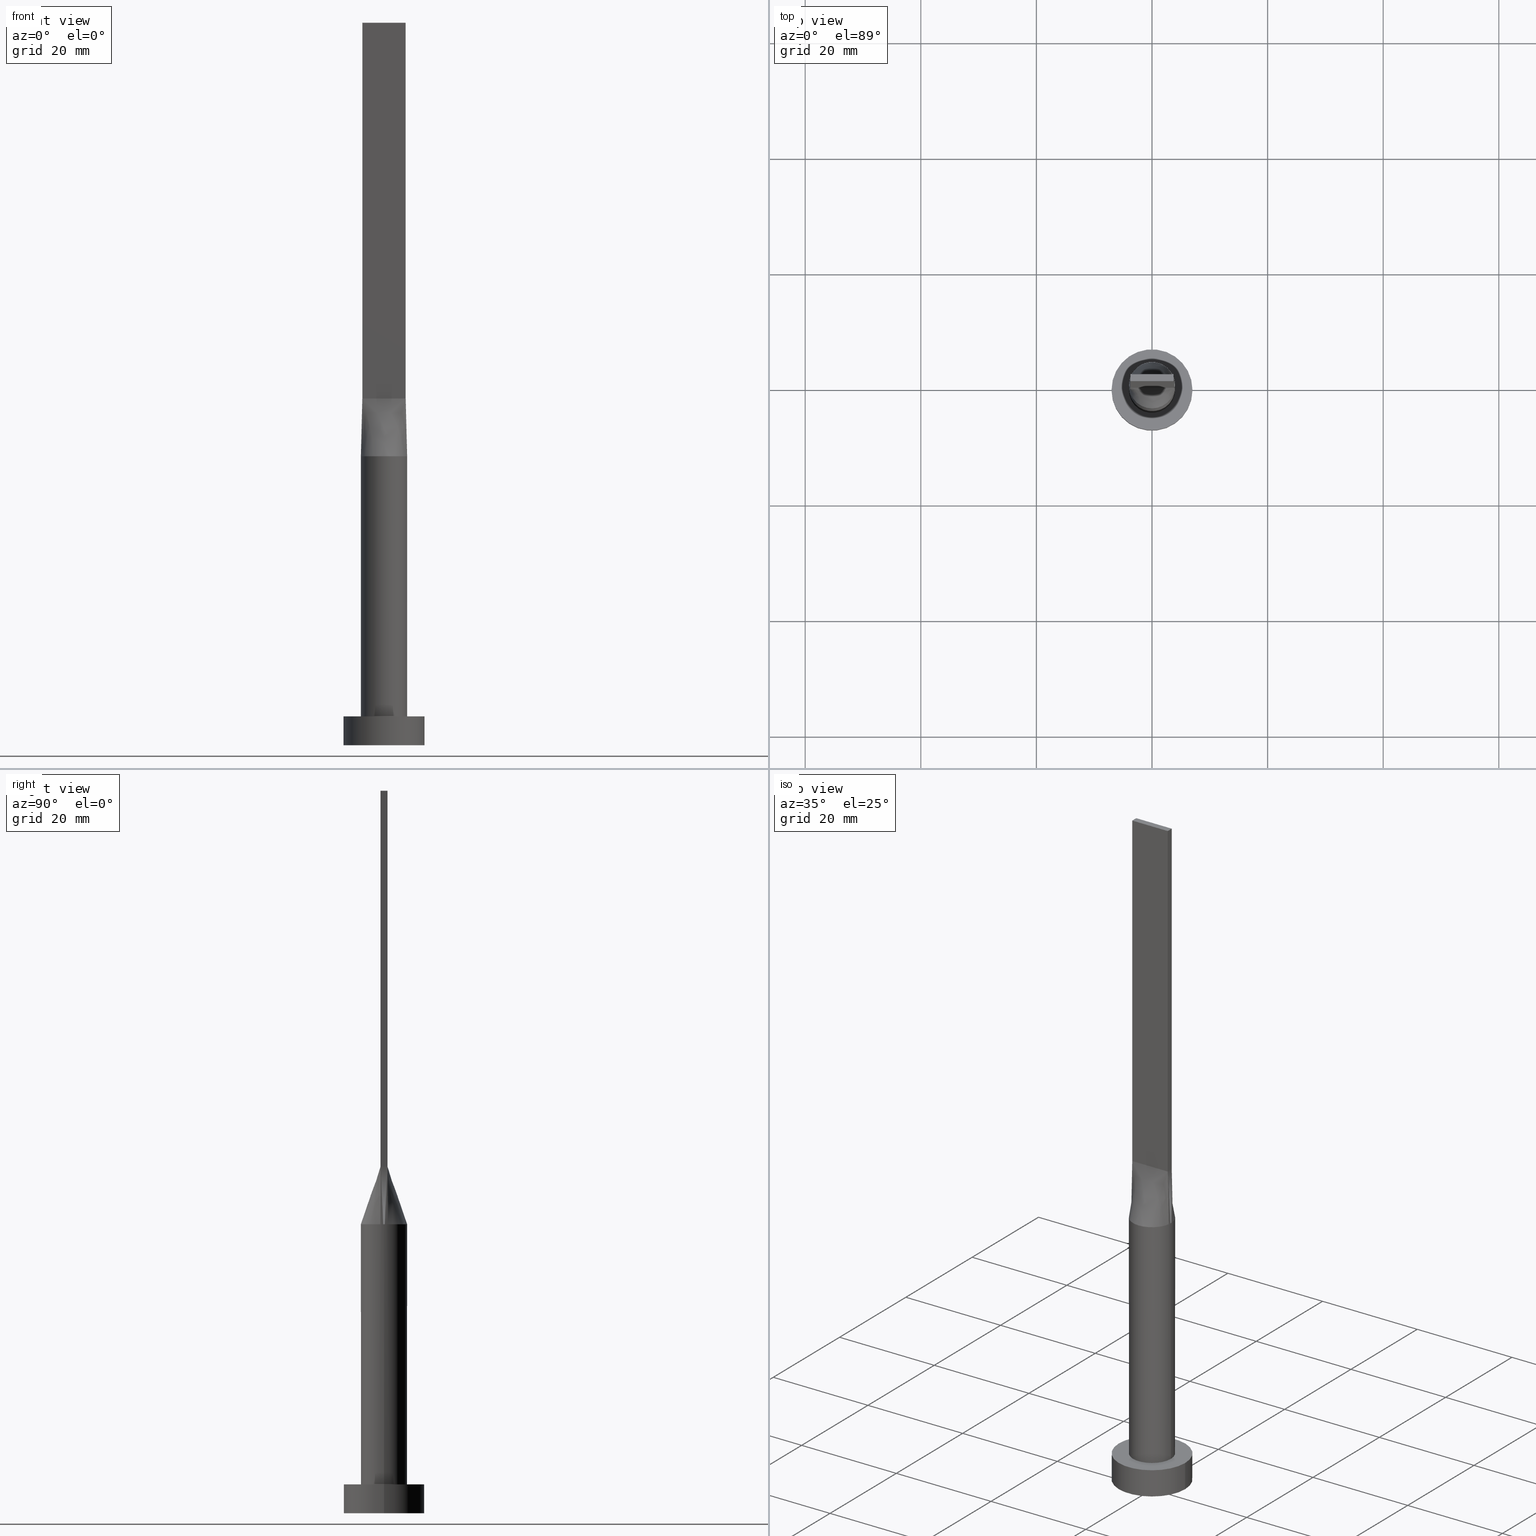
[diagram: canonical four-view strip — front | top / right | iso, engineering-drawing reading convention]
A machine part, canonical four-view strip (front | top / right | iso — engineering-drawing reading convention). The complete STEP part file that produces these views, byte-faithful:
ISO-10303-21;
HEADER;
FILE_DESCRIPTION (( 'STEP AP203' ),
    '1' );
FILE_NAME ('5fad.STEP',
    '2023-02-13T09:38:03',
    ( '' ),
    ( '' ),
    'SwSTEP 2.0',
    'SolidWorks 2019',
    '' );
FILE_SCHEMA (( 'CONFIG_CONTROL_DESIGN' ));
ENDSEC;

DATA;
#1 = CARTESIAN_POINT ( 'NONE',  ( 4.000000000000000000, 4.898587196589411843E-16, 49.99999999999999289 ) ) ;
#2 = VECTOR ( 'NONE', #42, 1000.000000000000000 ) ;
#3 = DIRECTION ( 'NONE',  ( 5.782411586589357392E-17, 1.000000000000000000, -0.000000000000000000 ) ) ;
#4 = EDGE_CURVE ( 'NONE', #386, #480, #259, .T. ) ;
#5 = ORIENTED_EDGE ( 'NONE', *, *, #118, .F. ) ;
#6 = DIRECTION ( 'NONE',  ( 1.000000000000000000, 0.000000000000000000, 0.000000000000000000 ) ) ;
#7 = CARTESIAN_POINT ( 'NONE',  ( -2.553164211252348714, 3.116528153703943538, 49.99999999999999289 ) ) ;
#8 = EDGE_LOOP ( 'NONE', ( #581, #68 ) ) ;
#9 = PERSON_AND_ORGANIZATION ( #160, #287 ) ;
#10 = CARTESIAN_POINT ( 'NONE',  ( -3.800365609718893811, 1.311488165564686392, 49.99999999999999289 ) ) ;
#11 = VERTEX_POINT ( 'NONE', #132 ) ;
#12 = ADVANCED_FACE ( 'NONE', ( #534 ), #226, .F. ) ;
#13 = CARTESIAN_POINT ( 'NONE',  ( 1.134810363096319108, -3.874001625491798162, 50.00000000000000000 ) ) ;
#14 = FACE_OUTER_BOUND ( 'NONE', #484, .T. ) ;
#15 = AXIS2_PLACEMENT_3D ( 'NONE', #472, #385, #81 ) ;
#16 = APPLICATION_PROTOCOL_DEFINITION ( 'international standard', 'config_control_design', 1994, #56 ) ;
#17 = CARTESIAN_POINT ( 'NONE',  ( -7.000000000000000000, 0.000000000000000000, 5.000000000000000000 ) ) ;
#18 = DIRECTION ( 'NONE',  ( 0.000000000000000000, 0.000000000000000000, 1.000000000000000000 ) ) ;
#19 = EDGE_CURVE ( 'NONE', #141, #424, #537, .T. ) ;
#20 = B_SPLINE_SURFACE_WITH_KNOTS ( 'NONE', 3, 1, ( 
 ( #308, #178 ),
 ( #144, #43 ),
 ( #446, #542 ),
 ( #96, #450 ),
 ( #39, #50 ),
 ( #491, #100 ),
 ( #270, #440 ),
 ( #487, #305 ),
 ( #354, #47 ),
 ( #262, #576 ),
 ( #220, #52 ),
 ( #182, #140 ),
 ( #7, #443 ),
 ( #223, #407 ),
 ( #364, #402 ),
 ( #10, #137 ),
 ( #313, #86 ),
 ( #495, #185 ) ),
 .UNSPECIFIED., .F., .F., .F.,
 ( 4, 2, 2, 2, 2, 2, 2, 2, 4 ),
 ( 2, 2 ),
 ( 0.000000000000000000, 0.1249999999999999445, 0.2499999999999998890, 0.3749999999999998335, 0.4999999999999997780, 0.6249999999999997780, 0.7499999999999998890, 0.8749999999999998890, 1.000000000000000000 ),
 ( 0.000000000000000000, 1.000000000000000000 ),
 .UNSPECIFIED. ) ;
#21 = LINE ( 'NONE', #51, #210 ) ;
#22 = CARTESIAN_POINT ( 'NONE',  ( -3.999842262273348048, -9.740943882706924690E-16, 49.99999999999999289 ) ) ;
#23 = FACE_OUTER_BOUND ( 'NONE', #297, .T. ) ;
#24 = DIRECTION ( 'NONE',  ( -0.000000000000000000, 0.000000000000000000, -1.000000000000000000 ) ) ;
#25 = VERTEX_POINT ( 'NONE', #265 ) ;
#26 = EDGE_CURVE ( 'NONE', #282, #303, #90, .T. ) ;
#27 = DIRECTION ( 'NONE',  ( -1.000000000000000000, 0.000000000000000000, 0.000000000000000000 ) ) ;
#28 = VERTEX_POINT ( 'NONE', #404 ) ;
#29 = DATE_AND_TIME ( #32, #163 ) ;
#30 = FACE_OUTER_BOUND ( 'NONE', #512, .T. ) ;
#31 = ORIENTED_EDGE ( 'NONE', *, *, #405, .T. ) ;
#32 = CALENDAR_DATE ( 2023, 13, 2 ) ;
#33 = CARTESIAN_POINT ( 'NONE',  ( 3.950097303404374038, 0.6320148730971578699, 49.99999999999999289 ) ) ;
#34 = EDGE_LOOP ( 'NONE', ( #73, #44, #294, #186 ) ) ;
#35 = PRODUCT_RELATED_PRODUCT_CATEGORY ( 'detail', '', ( #110 ) ) ;
#36 = CARTESIAN_POINT ( 'NONE',  ( -3.750000000000000000, 0.6000000000000001998, 125.0000000000000000 ) ) ;
#37 = AXIS2_PLACEMENT_3D ( 'NONE', #353, #452, #174 ) ;
#38 = CARTESIAN_POINT ( 'NONE',  ( -3.219262664220059023, -2.422342486356523050, 49.99999999999999289 ) ) ;
#39 = CARTESIAN_POINT ( 'NONE',  ( 3.219262664220058134, 2.422342486356523938, 49.99999999999998579 ) ) ;
#40 = VERTEX_POINT ( 'NONE', #316 ) ;
#41 = VECTOR ( 'NONE', #550, 1000.000000000000000 ) ;
#42 = DIRECTION ( 'NONE',  ( -0.01997216621675832263, 0.003195546594681128623, 0.9997954296047624201 ) ) ;
#43 = CARTESIAN_POINT ( 'NONE',  ( 3.437500000000000000, 0.6000000000000001998, 60.00000000000000000 ) ) ;
#44 = ORIENTED_EDGE ( 'NONE', *, *, #387, .T. ) ;
#45 = ADVANCED_FACE ( 'NONE', ( #361 ), #20, .T. ) ;
#46 = DIRECTION ( 'NONE',  ( -0.01997216621675832263, -0.003195546594681161149, 0.9997954296047624201 ) ) ;
#47 = CARTESIAN_POINT ( 'NONE',  ( 0.3125000000000010547, 0.6000000000000000888, 59.99999999999999289 ) ) ;
#48 = CARTESIAN_POINT ( 'NONE',  ( 3.849881263833410561, 0.6159810022133449525, 54.99999999999999289 ) ) ;
#49 = APPROVAL_PERSON_ORGANIZATION ( #532, #314, #528 ) ;
#50 = CARTESIAN_POINT ( 'NONE',  ( 2.187500000000000444, 0.6000000000000000888, 59.99999999999999289 ) ) ;
#51 = CARTESIAN_POINT ( 'NONE',  ( 3.750000000000000000, 0.6000000000000001998, 60.00000000000000000 ) ) ;
#52 = CARTESIAN_POINT ( 'NONE',  ( -0.6249999999999982236, 0.6000000000000000888, 59.99999999999999289 ) ) ;
#53 = VERTEX_POINT ( 'NONE', #192 ) ;
#54 = EDGE_CURVE ( 'NONE', #40, #383, #394, .T. ) ;
#55 = CARTESIAN_POINT ( 'NONE',  ( -0.5684794080625156232, -4.000000000000000000, 49.99999999999998579 ) ) ;
#56 = APPLICATION_CONTEXT ( 'configuration controlled 3d designs of mechanical parts and assemblies' ) ;
#57 = CARTESIAN_POINT ( 'NONE',  ( 3.749999999999999556, -0.3999999999999995781, 59.99999999999999289 ) ) ;
#58 = CARTESIAN_POINT ( 'NONE',  ( 0.000000000000000000, 0.000000000000000000, 5.000000000000000000 ) ) ;
#59 = APPROVAL_PERSON_ORGANIZATION ( #126, #564, #489 ) ;
#60 =( GEOMETRIC_REPRESENTATION_CONTEXT ( 3 ) GLOBAL_UNCERTAINTY_ASSIGNED_CONTEXT ( ( #116 ) ) GLOBAL_UNIT_ASSIGNED_CONTEXT ( ( #149, #369, #324 ) ) REPRESENTATION_CONTEXT ( 'NONE', 'WORKASPACE' ) );
#61 = VECTOR ( 'NONE', #147, 1000.000000000000000 ) ;
#62 = CARTESIAN_POINT ( 'NONE',  ( 2.553164211252348714, 3.116528153703943538, 49.99999999999999289 ) ) ;
#63 = CARTESIAN_POINT ( 'NONE',  ( 2.187499999999999556, -0.5999999999999996447, 60.00000000000000000 ) ) ;
#64 = DIRECTION ( 'NONE',  ( -0.000000000000000000, -0.000000000000000000, -1.000000000000000000 ) ) ;
#65 = ORIENTED_EDGE ( 'NONE', *, *, #26, .T. ) ;
#66 = DATE_AND_TIME ( #418, #203 ) ;
#67 = CARTESIAN_POINT ( 'NONE',  ( 3.461914487322979017, 2.043998057340944197, 49.99999999999997158 ) ) ;
#68 = ORIENTED_EDGE ( 'NONE', *, *, #280, .F. ) ;
#69 = DIRECTION ( 'NONE',  ( 1.000000000000000000, 1.065814103640150279E-14, 0.000000000000000000 ) ) ;
#70 = ORIENTED_EDGE ( 'NONE', *, *, #217, .T. ) ;
#71 = EDGE_CURVE ( 'NONE', #577, #288, #165, .T. ) ;
#72 = CARTESIAN_POINT ( 'NONE',  ( -3.750000000000000000, -0.5999999999999993117, 60.00000000000000000 ) ) ;
#73 = ORIENTED_EDGE ( 'NONE', *, *, #514, .T. ) ;
#74 = CYLINDRICAL_SURFACE ( 'NONE', #244, 7.000000000000000000 ) ;
#75 = EDGE_LOOP ( 'NONE', ( #125, #503, #380, #565 ) ) ;
#76 = AXIS2_PLACEMENT_3D ( 'NONE', #315, #448, #358 ) ;
#77 = EDGE_CURVE ( 'NONE', #480, #303, #376, .T. ) ;
#78 = CARTESIAN_POINT ( 'NONE',  ( -2.127794970397209884, 3.430476893735948440, 49.99999999999999289 ) ) ;
#79 = ORIENTED_EDGE ( 'NONE', *, *, #4, .F. ) ;
#80 = VECTOR ( 'NONE', #319, 1000.000000000000000 ) ;
#81 = DIRECTION ( 'NONE',  ( 1.000000000000000000, 0.000000000000000000, 0.000000000000000000 ) ) ;
#82 = ORIENTED_EDGE ( 'NONE', *, *, #334, .F. ) ;
#83 = DATE_TIME_ROLE ( 'classification_date' ) ;
#84 = CARTESIAN_POINT ( 'NONE',  ( -3.949762527666821565, 0.6319620044266903713, 49.99999999999999289 ) ) ;
#85 = APPLICATION_CONTEXT ( 'configuration controlled 3d designs of mechanical parts and assemblies' ) ;
#86 = CARTESIAN_POINT ( 'NONE',  ( -3.437499999999999556, 0.6000000000000000888, 60.00000000000000000 ) ) ;
#87 = PERSON_AND_ORGANIZATION ( #160, #287 ) ;
#88 = CIRCLE ( 'NONE', #509, 7.000000000000000000 ) ;
#89 = CARTESIAN_POINT ( 'NONE',  ( 3.750000000000000000, 0.6000000000000001998, 60.00000000000000000 ) ) ;
#90 = LINE ( 'NONE', #94, #482 ) ;
#91 = ORIENTED_EDGE ( 'NONE', *, *, #514, .F. ) ;
#92 = CC_DESIGN_DATE_AND_TIME_ASSIGNMENT ( #29, #306, ( #548 ) ) ;
#93 = FACE_OUTER_BOUND ( 'NONE', #34, .T. ) ;
#94 = CARTESIAN_POINT ( 'NONE',  ( -3.750000000000000000, 0.6000000000000001998, 60.00000000000000000 ) ) ;
#95 = CARTESIAN_POINT ( 'NONE',  ( -3.749999999999999556, 0.4000000000000001887, 59.99999999999999289 ) ) ;
#96 = CARTESIAN_POINT ( 'NONE',  ( 3.461914487322979017, 2.043998057340944197, 49.99999999999997158 ) ) ;
#97 = PLANE ( 'NONE',  #468 ) ;
#98 = ADVANCED_FACE ( 'NONE', ( #150 ), #515, .F. ) ;
#99 = AXIS2_PLACEMENT_3D ( 'NONE', #136, #269, #6 ) ;
#100 = CARTESIAN_POINT ( 'NONE',  ( 1.562500000000001332, 0.6000000000000000888, 59.99999999999998579 ) ) ;
#101 = CIRCLE ( 'NONE', #422, 7.000000000000000000 ) ;
#102 = CARTESIAN_POINT ( 'NONE',  ( 3.983043858920071845, -0.4239536840938781248, 49.99999999999999289 ) ) ;
#103 = CARTESIAN_POINT ( 'NONE',  ( -3.750000000000000000, -0.5999999999999993117, 125.0000000000000000 ) ) ;
#104 = CARTESIAN_POINT ( 'NONE',  ( 3.124999999999999112, -0.5999999999999996447, 60.00000000000000000 ) ) ;
#105 = CARTESIAN_POINT ( 'NONE',  ( 3.950097303404374038, 0.6320148730971578699, 49.99999999999999289 ) ) ;
#106 = VECTOR ( 'NONE', #499, 1000.000000000000000 ) ;
#107 = EDGE_CURVE ( 'NONE', #25, #282, #558, .T. ) ;
#108 = CARTESIAN_POINT ( 'NONE',  ( -0.6250000000000004441, -0.5999999999999994227, 60.00000000000000000 ) ) ;
#109 = LINE ( 'NONE', #196, #453 ) ;
#110 = PRODUCT ( '5fad', '5fad', '', ( #406 ) ) ;
#111 = MANIFOLD_SOLID_BREP ( 'P�idat vysunut�m5', #329 ) ;
#112 = ORIENTED_EDGE ( 'NONE', *, *, #292, .F. ) ;
#113 = CARTESIAN_POINT ( 'NONE',  ( 2.499999999999998668, -0.5999999999999996447, 60.00000000000000000 ) ) ;
#114 = CARTESIAN_POINT ( 'NONE',  ( 3.750000000000000000, 0.6000000000000001998, 60.00000000000000000 ) ) ;
#115 = B_SPLINE_SURFACE_WITH_KNOTS ( 'NONE', 3, 1, ( 
 ( #216, #536 ),
 ( #391, #222 ),
 ( #264, #573 ),
 ( #445, #225 ),
 ( #38, #219 ),
 ( #401, #490 ),
 ( #184, #326 ),
 ( #408, #108 ),
 ( #55, #456 ),
 ( #232, #363 ),
 ( #13, #277 ),
 ( #513, #416 ),
 ( #271, #506 ),
 ( #510, #63 ),
 ( #543, #113 ),
 ( #462, #104 ),
 ( #375, #194 ),
 ( #145, #238 ) ),
 .UNSPECIFIED., .F., .F., .F.,
 ( 4, 2, 2, 2, 2, 2, 2, 2, 4 ),
 ( 2, 2 ),
 ( 0.000000000000000000, 0.1250000000000000555, 0.2500000000000001110, 0.3750000000000001665, 0.5000000000000001110, 0.6250000000000001110, 0.7500000000000001110, 0.8750000000000000000, 1.000000000000000000 ),
 ( 0.000000000000000000, 1.000000000000000000 ),
 .UNSPECIFIED. ) ;
#116 = UNCERTAINTY_MEASURE_WITH_UNIT (LENGTH_MEASURE( 1.000000000000000082E-05 ), #149, 'distance_accuracy_value', 'NONE');
#117 = CARTESIAN_POINT ( 'NONE',  ( -3.800365609718893811, 1.311488165564686392, 49.99999999999999289 ) ) ;
#118 = EDGE_CURVE ( 'NONE', #40, #249, #458, .T. ) ;
#119 = VECTOR ( 'NONE', #215, 1000.000000000000000 ) ;
#120 = DIRECTION ( 'NONE',  ( -0.01997216621675832263, -0.003195546594681204517, -0.9997954296047624201 ) ) ;
#121 = PLANE ( 'NONE',  #517 ) ;
#122 = VERTEX_POINT ( 'NONE', #22 ) ;
#123 = EDGE_CURVE ( 'NONE', #141, #11, #109, .T. ) ;
#124 = CARTESIAN_POINT ( 'NONE',  ( 0.5684794080625145130, 4.000000000000000000, 49.99999999999999289 ) ) ;
#125 = ORIENTED_EDGE ( 'NONE', *, *, #378, .T. ) ;
#126 = PERSON_AND_ORGANIZATION ( #160, #287 ) ;
#127 = LINE ( 'NONE', #377, #260 ) ;
#128 = AXIS2_PLACEMENT_3D ( 'NONE', #399, #579, #540 ) ;
#129 = CARTESIAN_POINT ( 'NONE',  ( -3.750000000000000000, -0.5999999999999993117, 60.00000000000000000 ) ) ;
#130 = CARTESIAN_POINT ( 'NONE',  ( 0.000000000000000000, 0.000000000000000000, 5.000000000000000000 ) ) ;
#131 = CARTESIAN_POINT ( 'NONE',  ( 3.750000000000000000, 0.6000000000000001998, 125.0000000000000000 ) ) ;
#132 = CARTESIAN_POINT ( 'NONE',  ( 3.750000000000000000, -0.5999999999999997558, 60.00000000000000000 ) ) ;
#133 = EDGE_CURVE ( 'NONE', #249, #454, #101, .T. ) ;
#134 = DATE_AND_TIME ( #569, #555 ) ;
#135 = VECTOR ( 'NONE', #46, 1000.000000000000000 ) ;
#136 = CARTESIAN_POINT ( 'NONE',  ( 0.000000000000000000, 0.000000000000000000, 49.99999999999999289 ) ) ;
#137 = CARTESIAN_POINT ( 'NONE',  ( -3.124999999999999112, 0.6000000000000000888, 60.00000000000000000 ) ) ;
#138 = VECTOR ( 'NONE', #64, 1000.000000000000000 ) ;
#139 = DIRECTION ( 'NONE',  ( 1.000000000000000000, 0.000000000000000000, -0.000000000000000000 ) ) ;
#140 = CARTESIAN_POINT ( 'NONE',  ( -1.249999999999997780, 0.6000000000000000888, 59.99999999999999289 ) ) ;
#141 = VERTEX_POINT ( 'NONE', #272 ) ;
#142 = ADVANCED_FACE ( 'NONE', ( #409 ), #553, .F. ) ;
#143 = CARTESIAN_POINT ( 'NONE',  ( -3.749999999999999556, -0.3999999999999994116, 59.99999999999999289 ) ) ;
#144 = CARTESIAN_POINT ( 'NONE',  ( 3.897760447583618948, 0.9569750049467118380, 50.00000000000000711 ) ) ;
#145 = CARTESIAN_POINT ( 'NONE',  ( 3.949762527666821565, -0.6319620044266891501, 49.99999999999999289 ) ) ;
#146 = APPROVAL_PERSON_ORGANIZATION ( #9, #441, #191 ) ;
#147 = DIRECTION ( 'NONE',  ( -0.000000000000000000, -0.000000000000000000, -1.000000000000000000 ) ) ;
#148 = AXIS2_PLACEMENT_3D ( 'NONE', #351, #3, #231 ) ;
#149 =( LENGTH_UNIT ( ) NAMED_UNIT ( * ) SI_UNIT ( .MILLI., .METRE. ) );
#150 = FACE_OUTER_BOUND ( 'NONE', #561, .T. ) ;
#151 = CARTESIAN_POINT ( 'NONE',  ( 0.000000000000000000, 0.000000000000000000, 0.000000000000000000 ) ) ;
#152 = DIRECTION ( 'NONE',  ( 0.000000000000000000, 0.000000000000000000, 1.000000000000000000 ) ) ;
#153 = EDGE_CURVE ( 'NONE', #122, #447, #239, .T. ) ;
#154 = APPROVAL_STATUS ( 'not_yet_approved' ) ;
#155 = DIRECTION ( 'NONE',  ( 0.01997216621675832263, -0.003195546594681204517, 0.9997954296047624201 ) ) ;
#156 = SECURITY_CLASSIFICATION ( '', '', #430 ) ;
#157 = VECTOR ( 'NONE', #497, 1000.000000000000000 ) ;
#158 = CARTESIAN_POINT ( 'NONE',  ( 0.000000000000000000, 0.000000000000000000, 0.000000000000000000 ) ) ;
#159 = ADVANCED_FACE ( 'NONE', ( #368, #23 ), #463, .T. ) ;
#160 = PERSON ( 'NEUR�EN�', 'NEUR�EN�', 'NEUR�EN�', ('NEUR�EN�'), ('NEUR�EN�'), ('NEUR�EN�') ) ;
#161 = DIRECTION ( 'NONE',  ( -0.000000000000000000, -0.000000000000000000, -1.000000000000000000 ) ) ;
#162 = CARTESIAN_POINT ( 'NONE',  ( -3.950102418235696522, 0.6320155757311000100, 49.99999999999999289 ) ) ;
#163 = LOCAL_TIME ( 10, 38, 3.000000000000000000, #255 ) ;
#164 = CARTESIAN_POINT ( 'NONE',  ( 0.000000000000000000, 0.000000000000000000, 5.000000000000000000 ) ) ;
#165 = CIRCLE ( 'NONE', #128, 4.000000000000000000 ) ;
#166 = ORIENTED_EDGE ( 'NONE', *, *, #54, .F. ) ;
#167 = PERSON_AND_ORGANIZATION ( #160, #287 ) ;
#168 = DIRECTION ( 'NONE',  ( 1.000000000000000000, -5.782411586589357392E-17, 0.000000000000000000 ) ) ;
#169 = ORIENTED_EDGE ( 'NONE', *, *, #153, .F. ) ;
#170 = DIRECTION ( 'NONE',  ( 1.000000000000000000, 0.000000000000000000, 0.000000000000000000 ) ) ;
#171 = ORIENTED_EDGE ( 'NONE', *, *, #449, .T. ) ;
#172 = CALENDAR_DATE ( 2023, 13, 2 ) ;
#173 = CIRCLE ( 'NONE', #99, 4.000000000000000000 ) ;
#174 = DIRECTION ( 'NONE',  ( 1.000000000000000000, 0.000000000000000000, 0.000000000000000000 ) ) ;
#175 = ORIENTED_EDGE ( 'NONE', *, *, #71, .T. ) ;
#176 = EDGE_CURVE ( 'NONE', #383, #454, #233, .T. ) ;
#177 = LINE ( 'NONE', #541, #2 ) ;
#178 = CARTESIAN_POINT ( 'NONE',  ( 3.750000000000000000, 0.6000000000000001998, 60.00000000000000000 ) ) ;
#179 = EDGE_LOOP ( 'NONE', ( #65, #365, #79, #323 ) ) ;
#180 = PERSON_AND_ORGANIZATION_ROLE ( 'creator' ) ;
#181 = CARTESIAN_POINT ( 'NONE',  ( -3.999684524546696096, -0.2119768420469381465, 49.99999999999999289 ) ) ;
#182 = CARTESIAN_POINT ( 'NONE',  ( -2.127794970397209884, 3.430476893735948440, 49.99999999999999289 ) ) ;
#183 = VECTOR ( 'NONE', #438, 1000.000000000000000 ) ;
#184 = CARTESIAN_POINT ( 'NONE',  ( -2.127794970397209884, -3.430476893735947996, 50.00000000000000000 ) ) ;
#185 = CARTESIAN_POINT ( 'NONE',  ( -3.750000000000000000, 0.6000000000000001998, 60.00000000000000000 ) ) ;
#186 = ORIENTED_EDGE ( 'NONE', *, *, #300, .T. ) ;
#187 = CC_DESIGN_PERSON_AND_ORGANIZATION_ASSIGNMENT ( #167, #481, ( #156 ) ) ;
#188 = CARTESIAN_POINT ( 'NONE',  ( -3.749999999999999556, -0.1999999999999995115, 59.99999999999999289 ) ) ;
#189 = ORIENTED_EDGE ( 'NONE', *, *, #153, .T. ) ;
#190 = VERTEX_POINT ( 'NONE', #205 ) ;
#191 = APPROVAL_ROLE ( '' ) ;
#192 = CARTESIAN_POINT ( 'NONE',  ( -3.950111798046394007, -0.6320171791297864994, 49.99999999999999289 ) ) ;
#193 = ORIENTED_EDGE ( 'NONE', *, *, #467, .T. ) ;
#194 = CARTESIAN_POINT ( 'NONE',  ( 3.437499999999999556, -0.5999999999999996447, 60.00000000000000000 ) ) ;
#195 = VECTOR ( 'NONE', #382, 1000.000000000000000 ) ;
#196 = CARTESIAN_POINT ( 'NONE',  ( 3.750000000000000000, -0.5999999999999997558, 125.0000000000000000 ) ) ;
#197 = CARTESIAN_POINT ( 'NONE',  ( 3.999842262273348936, 9.852009208038395466E-16, 49.99999999999999289 ) ) ;
#198 = EDGE_CURVE ( 'NONE', #424, #437, #331, .T. ) ;
#199 = DIRECTION ( 'NONE',  ( -0.000000000000000000, -0.000000000000000000, -1.000000000000000000 ) ) ;
#200 = DIRECTION ( 'NONE',  ( 0.000000000000000000, -0.000000000000000000, -1.000000000000000000 ) ) ;
#201 = COORDINATED_UNIVERSAL_TIME_OFFSET ( 1, 0, .AHEAD. ) ;
#202 = CARTESIAN_POINT ( 'NONE',  ( 3.750000000000000000, 0.6000000000000001998, 125.0000000000000000 ) ) ;
#203 = LOCAL_TIME ( 10, 38, 3.000000000000000000, #299 ) ;
#204 = B_SPLINE_SURFACE_WITH_KNOTS ( 'NONE', 3, 1, ( 
 ( #84, #493 ),
 ( #318, #95 ),
 ( #307, #530 ),
 ( #181, #188 ),
 ( #442, #143 ),
 ( #360, #129 ) ),
 .UNSPECIFIED., .F., .F., .F.,
 ( 4, 2, 4 ),
 ( 2, 2 ),
 ( 0.000000000000000000, 0.5000000000000000000, 1.000000000000000000 ),
 ( 0.000000000000000000, 1.000000000000000000 ),
 .UNSPECIFIED. ) ;
#205 = CARTESIAN_POINT ( 'NONE',  ( 4.000000000000000000, 4.898587196589411843E-16, 5.000000000000000000 ) ) ;
#206 = CARTESIAN_POINT ( 'NONE',  ( -3.461914487322979905, 2.043998057340944197, 50.00000000000000711 ) ) ;
#207 = ORIENTED_EDGE ( 'NONE', *, *, #54, .T. ) ;
#208 = CARTESIAN_POINT ( 'NONE',  ( 3.750000000000000000, 0.6000000000000001998, 125.0000000000000000 ) ) ;
#209 = ORIENTED_EDGE ( 'NONE', *, *, #26, .F. ) ;
#210 = VECTOR ( 'NONE', #556, 1000.000000000000000 ) ;
#211 = CARTESIAN_POINT ( 'NONE',  ( 0.000000000000000000, 0.000000000000000000, 49.99999999999999289 ) ) ;
#212 = ADVANCED_FACE ( 'NONE', ( #14 ), #284, .T. ) ;
#213 = ORIENTED_EDGE ( 'NONE', *, *, #467, .F. ) ;
#214 = SHAPE_DEFINITION_REPRESENTATION ( #580, #557 ) ;
#215 = DIRECTION ( 'NONE',  ( -0.000000000000000000, -0.000000000000000000, -1.000000000000000000 ) ) ;
#216 = CARTESIAN_POINT ( 'NONE',  ( -3.949762527666821565, -0.6319620044266894832, 49.99999999999999289 ) ) ;
#217 = EDGE_CURVE ( 'NONE', #288, #25, #434, .T. ) ;
#218 = AXIS2_PLACEMENT_3D ( 'NONE', #211, #523, #286 ) ;
#219 = CARTESIAN_POINT ( 'NONE',  ( -2.187500000000000000, -0.5999999999999994227, 60.00000000000000000 ) ) ;
#220 = CARTESIAN_POINT ( 'NONE',  ( -1.134810363096319996, 3.874001625491799938, 50.00000000000000711 ) ) ;
#221 = ORIENTED_EDGE ( 'NONE', *, *, #554, .F. ) ;
#222 = CARTESIAN_POINT ( 'NONE',  ( -3.437500000000000000, -0.5999999999999993117, 60.00000000000000000 ) ) ;
#223 = CARTESIAN_POINT ( 'NONE',  ( -3.219262664220059023, 2.422342486356523938, 49.99999999999998579 ) ) ;
#224 = ORIENTED_EDGE ( 'NONE', *, *, #387, .F. ) ;
#225 = CARTESIAN_POINT ( 'NONE',  ( -2.500000000000000000, -0.5999999999999994227, 60.00000000000000000 ) ) ;
#226 = PLANE ( 'NONE',  #148 ) ;
#227 = EDGE_LOOP ( 'NONE', ( #341, #247, #338, #392 ) ) ;
#228 = AXIS2_PLACEMENT_3D ( 'NONE', #347, #403, #258 ) ;
#229 = FACE_OUTER_BOUND ( 'NONE', #75, .T. ) ;
#230 = CARTESIAN_POINT ( 'NONE',  ( -3.750000000000000000, 0.6000000000000001998, 125.0000000000000000 ) ) ;
#231 = DIRECTION ( 'NONE',  ( -1.000000000000000000, 5.782411586589357392E-17, 0.000000000000000000 ) ) ;
#232 = CARTESIAN_POINT ( 'NONE',  ( 0.5684794080625150681, -4.000000000000000888, 49.99999999999999289 ) ) ;
#233 = LINE ( 'NONE', #328, #41 ) ;
#234 = ADVANCED_FACE ( 'NONE', ( #30 ), #74, .T. ) ;
#235 = APPLICATION_PROTOCOL_DEFINITION ( 'international standard', 'config_control_design', 1994, #85 ) ;
#236 = PRODUCT_DEFINITION_FORMATION_WITH_SPECIFIED_SOURCE ( 'LIBOVOLN�', '', #110, .NOT_KNOWN. ) ;
#237 = DIRECTION ( 'NONE',  ( 1.000000000000000000, 0.000000000000000000, -0.000000000000000000 ) ) ;
#238 = CARTESIAN_POINT ( 'NONE',  ( 3.750000000000000000, -0.5999999999999997558, 60.00000000000000000 ) ) ;
#239 = LINE ( 'NONE', #457, #138 ) ;
#240 = LINE ( 'NONE', #411, #572 ) ;
#241 = CARTESIAN_POINT ( 'NONE',  ( 3.999684524546696540, 0.2119768420469383408, 49.99999999999999289 ) ) ;
#242 = CC_DESIGN_PERSON_AND_ORGANIZATION_ASSIGNMENT ( #87, #180, ( #236 ) ) ;
#243 = DATE_AND_TIME ( #396, #278 ) ;
#244 = AXIS2_PLACEMENT_3D ( 'NONE', #435, #479, #570 ) ;
#245 = CARTESIAN_POINT ( 'NONE',  ( 3.749999999999999556, -0.1999999999999995393, 59.99999999999999289 ) ) ;
#246 = CARTESIAN_POINT ( 'NONE',  ( -3.897760447583618504, 0.9569750049467115049, 50.00000000000001421 ) ) ;
#247 = ORIENTED_EDGE ( 'NONE', *, *, #123, .F. ) ;
#248 = FACE_OUTER_BOUND ( 'NONE', #345, .T. ) ;
#249 = VERTEX_POINT ( 'NONE', #388 ) ;
#250 = ADVANCED_FACE ( 'NONE', ( #301 ), #469, .T. ) ;
#251 = FACE_OUTER_BOUND ( 'NONE', #179, .T. ) ;
#252 = ORIENTED_EDGE ( 'NONE', *, *, #257, .F. ) ;
#253 = AXIS2_PLACEMENT_3D ( 'NONE', #290, #343, #333 ) ;
#254 = CARTESIAN_POINT ( 'NONE',  ( -3.750000000000000000, 0.6000000000000001998, 125.0000000000000000 ) ) ;
#255 = COORDINATED_UNIVERSAL_TIME_OFFSET ( 1, 0, .AHEAD. ) ;
#256 = CARTESIAN_POINT ( 'NONE',  ( 0.000000000000000000, 0.000000000000000000, 5.000000000000000000 ) ) ;
#257 = EDGE_CURVE ( 'NONE', #25, #122, #439, .T. ) ;
#258 = DIRECTION ( 'NONE',  ( 1.000000000000000000, 0.000000000000000000, -0.000000000000000000 ) ) ;
#259 = LINE ( 'NONE', #230, #157 ) ;
#260 = VECTOR ( 'NONE', #168, 1000.000000000000000 ) ;
#261 = FACE_OUTER_BOUND ( 'NONE', #527, .T. ) ;
#262 = CARTESIAN_POINT ( 'NONE',  ( -0.5684794080625158452, 3.999999999999999112, 49.99999999999999289 ) ) ;
#263 = ORIENTED_EDGE ( 'NONE', *, *, #133, .F. ) ;
#264 = CARTESIAN_POINT ( 'NONE',  ( -3.800365609718892923, -1.311488165564685726, 49.99999999999998579 ) ) ;
#265 = CARTESIAN_POINT ( 'NONE',  ( -3.950102418235696522, 0.6320155757311000100, 49.99999999999999289 ) ) ;
#266 = DIRECTION ( 'NONE',  ( 0.000000000000000000, 0.000000000000000000, 1.000000000000000000 ) ) ;
#267 = DIRECTION ( 'NONE',  ( 0.000000000000000000, -1.000000000000000000, 0.000000000000000000 ) ) ;
#268 = VECTOR ( 'NONE', #502, 1000.000000000000000 ) ;
#269 = DIRECTION ( 'NONE',  ( 0.000000000000000000, 0.000000000000000000, 1.000000000000000000 ) ) ;
#270 = CARTESIAN_POINT ( 'NONE',  ( 2.127794970397208107, 3.430476893735948885, 49.99999999999998579 ) ) ;
#271 = CARTESIAN_POINT ( 'NONE',  ( 2.553164211252348270, -3.116528153703943094, 49.99999999999999289 ) ) ;
#272 = CARTESIAN_POINT ( 'NONE',  ( 3.750000000000000000, -0.5999999999999997558, 125.0000000000000000 ) ) ;
#273 = EDGE_LOOP ( 'NONE', ( #444, #112, #521, #568 ) ) ;
#274 = ADVANCED_FACE ( 'NONE', ( #251 ), #121, .F. ) ;
#275 = PERSON_AND_ORGANIZATION_ROLE ( 'design_owner' ) ;
#276 = DIRECTION ( 'NONE',  ( -1.000000000000000000, 0.000000000000000000, 0.000000000000000000 ) ) ;
#277 = CARTESIAN_POINT ( 'NONE',  ( 0.6249999999999993339, -0.5999999999999995337, 59.99999999999999289 ) ) ;
#278 = LOCAL_TIME ( 10, 38, 3.000000000000000000, #349 ) ;
#279 = CARTESIAN_POINT ( 'NONE',  ( 3.219262664220058134, 2.422342486356523938, 49.99999999999998579 ) ) ;
#280 = EDGE_CURVE ( 'NONE', #190, #447, #310, .T. ) ;
#281 = CARTESIAN_POINT ( 'NONE',  ( 3.949762527666821565, -0.6319620044266909265, 49.99999999999999289 ) ) ;
#282 = VERTEX_POINT ( 'NONE', #567 ) ;
#283 = CARTESIAN_POINT ( 'NONE',  ( 0.000000000000000000, 0.000000000000000000, 0.000000000000000000 ) ) ;
#284 = B_SPLINE_SURFACE_WITH_KNOTS ( 'NONE', 3, 1, ( 
 ( #281, #370 ),
 ( #102, #57 ),
 ( #511, #245 ),
 ( #241, #325 ),
 ( #507, #412 ),
 ( #417, #114 ) ),
 .UNSPECIFIED., .F., .F., .F.,
 ( 4, 2, 4 ),
 ( 2, 2 ),
 ( 0.000000000000000000, 0.5000000000000000000, 1.000000000000000000 ),
 ( 0.000000000000000000, 1.000000000000000000 ),
 .UNSPECIFIED. ) ;
#285 = CARTESIAN_POINT ( 'NONE',  ( 3.897760447583618948, 0.9569750049467118380, 50.00000000000000711 ) ) ;
#286 = DIRECTION ( 'NONE',  ( 1.000000000000000000, 0.000000000000000000, 0.000000000000000000 ) ) ;
#287 = ORGANIZATION ( 'NEUR�EN�', 'NEUR�EN�', '' ) ;
#288 = VERTEX_POINT ( 'NONE', #33 ) ;
#289 = VECTOR ( 'NONE', #199, 1000.000000000000000 ) ;
#290 = CARTESIAN_POINT ( 'NONE',  ( 0.000000000000000000, 0.000000000000000000, 49.99999999999999289 ) ) ;
#291 = ORIENTED_EDGE ( 'NONE', *, *, #71, .F. ) ;
#292 = EDGE_CURVE ( 'NONE', #386, #282, #518, .T. ) ;
#293 = CYLINDRICAL_SURFACE ( 'NONE', #546, 7.000000000000000000 ) ;
#294 = ORIENTED_EDGE ( 'NONE', *, *, #538, .F. ) ;
#295 = APPROVAL_STATUS ( 'not_yet_approved' ) ;
#296 = CARTESIAN_POINT ( 'NONE',  ( -3.849881263833410561, -0.6159810022133443974, 54.99999999999999289 ) ) ;
#297 = EDGE_LOOP ( 'NONE', ( #207, #348 ) ) ;
#298 = CC_DESIGN_APPROVAL ( #314, ( #156 ) ) ;
#299 = COORDINATED_UNIVERSAL_TIME_OFFSET ( 1, 0, .AHEAD. ) ;
#300 = EDGE_CURVE ( 'NONE', #303, #53, #431, .T. ) ;
#301 = FACE_OUTER_BOUND ( 'NONE', #475, .T. ) ;
#302 = AXIS2_PLACEMENT_3D ( 'NONE', #130, #395, #359 ) ;
#303 = VERTEX_POINT ( 'NONE', #72 ) ;
#304 = CARTESIAN_POINT ( 'NONE',  ( -3.750000000000000000, 0.6000000000000001998, 60.00000000000000000 ) ) ;
#305 = CARTESIAN_POINT ( 'NONE',  ( 0.6250000000000014433, 0.6000000000000000888, 59.99999999999998579 ) ) ;
#306 = DATE_TIME_ROLE ( 'creation_date' ) ;
#307 = CARTESIAN_POINT ( 'NONE',  ( -3.999684524546696096, 0.2119768420469390069, 49.99999999999999289 ) ) ;
#308 = CARTESIAN_POINT ( 'NONE',  ( 3.949762527666821565, 0.6319620044266911485, 49.99999999999999289 ) ) ;
#309 = ORIENTED_EDGE ( 'NONE', *, *, #257, .T. ) ;
#310 = CIRCLE ( 'NONE', #15, 4.000000000000000000 ) ;
#311 = CIRCLE ( 'NONE', #478, 4.000000000000000000 ) ;
#312 = CARTESIAN_POINT ( 'NONE',  ( 7.000000000000000000, 8.572527594031473190E-16, 0.000000000000000000 ) ) ;
#313 = CARTESIAN_POINT ( 'NONE',  ( -3.897760447583618504, 0.9569750049467115049, 50.00000000000001421 ) ) ;
#314 = APPROVAL ( #433, 'NEUR�EN�' ) ;
#315 = CARTESIAN_POINT ( 'NONE',  ( 0.000000000000000000, 0.000000000000000000, 49.99999999999999289 ) ) ;
#316 = CARTESIAN_POINT ( 'NONE',  ( -7.000000000000000000, 0.000000000000000000, 5.000000000000000000 ) ) ;
#317 = ORIENTED_EDGE ( 'NONE', *, *, #334, .T. ) ;
#318 = CARTESIAN_POINT ( 'NONE',  ( -3.983043858920071845, 0.4239536840938776252, 49.99999999999999289 ) ) ;
#319 = DIRECTION ( 'NONE',  ( 0.000000000000000000, 1.000000000000000000, 0.000000000000000000 ) ) ;
#320 = ORIENTED_EDGE ( 'NONE', *, *, #176, .F. ) ;
#321 = EDGE_CURVE ( 'NONE', #383, #40, #357, .T. ) ;
#322 = DIRECTION ( 'NONE',  ( 0.000000000000000000, -1.000000000000000000, 0.000000000000000000 ) ) ;
#323 = ORIENTED_EDGE ( 'NONE', *, *, #292, .T. ) ;
#324 =( NAMED_UNIT ( * ) SI_UNIT ( $, .STERADIAN. ) SOLID_ANGLE_UNIT ( ) );
#325 = CARTESIAN_POINT ( 'NONE',  ( 3.749999999999999556, 0.2000000000000003997, 59.99999999999999289 ) ) ;
#326 = CARTESIAN_POINT ( 'NONE',  ( -1.250000000000000222, -0.5999999999999994227, 60.00000000000000000 ) ) ;
#327 = CARTESIAN_POINT ( 'NONE',  ( -3.849881263833410561, 0.6159810022133451746, 54.99999999999999289 ) ) ;
#328 = CARTESIAN_POINT ( 'NONE',  ( 7.000000000000000000, 8.572527594031473190E-16, 5.000000000000000000 ) ) ;
#329 = CLOSED_SHELL ( 'NONE', ( #373, #342, #234, #159, #421, #250, #522, #212, #477, #45, #142, #274, #12, #98, #397 ) ) ;
#330 = PERSON_AND_ORGANIZATION ( #160, #287 ) ;
#331 = LINE ( 'NONE', #202, #268 ) ;
#332 = LINE ( 'NONE', #208, #195 ) ;
#333 = DIRECTION ( 'NONE',  ( -1.000000000000000000, 0.000000000000000000, 0.000000000000000000 ) ) ;
#334 = EDGE_CURVE ( 'NONE', #28, #577, #311, .T. ) ;
#335 = CIRCLE ( 'NONE', #76, 4.000000000000000000 ) ;
#336 = ORIENTED_EDGE ( 'NONE', *, *, #19, .F. ) ;
#337 = CARTESIAN_POINT ( 'NONE',  ( 0.000000000000000000, 0.000000000000000000, 49.99999999999999289 ) ) ;
#338 = ORIENTED_EDGE ( 'NONE', *, *, #362, .F. ) ;
#339 = APPROVAL_DATE_TIME ( #243, #564 ) ;
#340 = FACE_OUTER_BOUND ( 'NONE', #498, .T. ) ;
#341 = ORIENTED_EDGE ( 'NONE', *, *, #538, .T. ) ;
#342 = ADVANCED_FACE ( 'NONE', ( #248 ), #293, .T. ) ;
#343 = DIRECTION ( 'NONE',  ( -0.000000000000000000, -0.000000000000000000, -1.000000000000000000 ) ) ;
#344 = ORIENTED_EDGE ( 'NONE', *, *, #405, .F. ) ;
#345 = EDGE_LOOP ( 'NONE', ( #470, #426, #473, #5 ) ) ;
#346 = PERSON_AND_ORGANIZATION ( #160, #287 ) ;
#347 = CARTESIAN_POINT ( 'NONE',  ( 0.000000000000000000, 0.000000000000000000, 0.000000000000000000 ) ) ;
#348 = ORIENTED_EDGE ( 'NONE', *, *, #321, .T. ) ;
#349 = COORDINATED_UNIVERSAL_TIME_OFFSET ( 1, 0, .AHEAD. ) ;
#350 = FACE_OUTER_BOUND ( 'NONE', #389, .T. ) ;
#351 = CARTESIAN_POINT ( 'NONE',  ( -3.750000000000000000, -0.5999999999999993117, 125.0000000000000000 ) ) ;
#352 = APPROVAL_DATE_TIME ( #66, #314 ) ;
#353 = CARTESIAN_POINT ( 'NONE',  ( 0.000000000000000000, 0.000000000000000000, 5.000000000000000000 ) ) ;
#354 = CARTESIAN_POINT ( 'NONE',  ( 0.5684794080625145130, 4.000000000000000000, 49.99999999999999289 ) ) ;
#355 = CC_DESIGN_PERSON_AND_ORGANIZATION_ASSIGNMENT ( #330, #275, ( #110 ) ) ;
#356 = ORIENTED_EDGE ( 'NONE', *, *, #123, .T. ) ;
#357 = CIRCLE ( 'NONE', #492, 7.000000000000000000 ) ;
#358 = DIRECTION ( 'NONE',  ( 1.000000000000000000, 0.000000000000000000, 0.000000000000000000 ) ) ;
#359 = DIRECTION ( 'NONE',  ( 1.000000000000000000, 0.000000000000000000, 0.000000000000000000 ) ) ;
#360 = CARTESIAN_POINT ( 'NONE',  ( -3.949762527666821565, -0.6319620044266894832, 49.99999999999999289 ) ) ;
#361 = FACE_OUTER_BOUND ( 'NONE', #436, .T. ) ;
#362 = EDGE_CURVE ( 'NONE', #480, #141, #127, .T. ) ;
#363 = CARTESIAN_POINT ( 'NONE',  ( 0.3124999999999991118, -0.5999999999999995337, 59.99999999999999289 ) ) ;
#364 = CARTESIAN_POINT ( 'NONE',  ( -3.461914487322979905, 2.043998057340944197, 50.00000000000000711 ) ) ;
#365 = ORIENTED_EDGE ( 'NONE', *, *, #77, .F. ) ;
#366 = CC_DESIGN_APPROVAL ( #441, ( #548 ) ) ;
#367 = DIRECTION ( 'NONE',  ( 0.000000000000000000, 0.000000000000000000, 1.000000000000000000 ) ) ;
#368 = FACE_BOUND ( 'NONE', #8, .T. ) ;
#369 =( NAMED_UNIT ( * ) PLANE_ANGLE_UNIT ( ) SI_UNIT ( $, .RADIAN. ) );
#370 = CARTESIAN_POINT ( 'NONE',  ( 3.750000000000000000, -0.5999999999999997558, 60.00000000000000000 ) ) ;
#371 = DIRECTION ( 'NONE',  ( 0.000000000000000000, 0.000000000000000000, 1.000000000000000000 ) ) ;
#372 = DIRECTION ( 'NONE',  ( 1.000000000000000000, 0.000000000000000000, 0.000000000000000000 ) ) ;
#373 = ADVANCED_FACE ( 'NONE', ( #340 ), #559, .T. ) ;
#374 = DESIGN_CONTEXT ( 'detailed design', #85, 'design' ) ;
#375 = CARTESIAN_POINT ( 'NONE',  ( 3.897760447583619836, -0.9569750049467118380, 50.00000000000000711 ) ) ;
#376 = LINE ( 'NONE', #103, #289 ) ;
#377 = CARTESIAN_POINT ( 'NONE',  ( -3.750000000000000000, -0.5999999999999993117, 125.0000000000000000 ) ) ;
#378 = EDGE_CURVE ( 'NONE', #424, #386, #332, .T. ) ;
#379 = CARTESIAN_POINT ( 'NONE',  ( -1.134810363096319996, 3.874001625491799938, 50.00000000000000711 ) ) ;
#380 = ORIENTED_EDGE ( 'NONE', *, *, #362, .T. ) ;
#381 = VECTOR ( 'NONE', #120, 1000.000000000000000 ) ;
#382 = DIRECTION ( 'NONE',  ( -1.000000000000000000, 0.000000000000000000, 0.000000000000000000 ) ) ;
#383 = VERTEX_POINT ( 'NONE', #563 ) ;
#384 = DATE_AND_TIME ( #172, #410 ) ;
#385 = DIRECTION ( 'NONE',  ( 0.000000000000000000, 0.000000000000000000, 1.000000000000000000 ) ) ;
#386 = VERTEX_POINT ( 'NONE', #575 ) ;
#387 = EDGE_CURVE ( 'NONE', #28, #11, #177, .T. ) ;
#388 = CARTESIAN_POINT ( 'NONE',  ( -7.000000000000000000, 0.000000000000000000, 0.000000000000000000 ) ) ;
#389 = EDGE_LOOP ( 'NONE', ( #263, #524 ) ) ;
#390 = PERSON_AND_ORGANIZATION ( #160, #287 ) ;
#391 = CARTESIAN_POINT ( 'NONE',  ( -3.897760447583618948, -0.9569750049467102837, 49.99999999999999289 ) ) ;
#392 = ORIENTED_EDGE ( 'NONE', *, *, #77, .T. ) ;
#393 = LINE ( 'NONE', #304, #106 ) ;
#394 = CIRCLE ( 'NONE', #302, 7.000000000000000000 ) ;
#395 = DIRECTION ( 'NONE',  ( 0.000000000000000000, 0.000000000000000000, 1.000000000000000000 ) ) ;
#396 = CALENDAR_DATE ( 2023, 13, 2 ) ;
#397 = ADVANCED_FACE ( 'NONE', ( #229 ), #97, .T. ) ;
#398 = CARTESIAN_POINT ( 'NONE',  ( -4.000000000000000000, 0.000000000000000000, 5.000000000000000000 ) ) ;
#399 = CARTESIAN_POINT ( 'NONE',  ( 0.000000000000000000, 0.000000000000000000, 49.99999999999999289 ) ) ;
#400 = ORIENTED_EDGE ( 'NONE', *, *, #107, .F. ) ;
#401 = CARTESIAN_POINT ( 'NONE',  ( -2.553164211252349158, -3.116528153703943094, 50.00000000000000711 ) ) ;
#402 = CARTESIAN_POINT ( 'NONE',  ( -2.499999999999998668, 0.6000000000000000888, 60.00000000000000000 ) ) ;
#403 = DIRECTION ( 'NONE',  ( 0.000000000000000000, 0.000000000000000000, 1.000000000000000000 ) ) ;
#404 = CARTESIAN_POINT ( 'NONE',  ( 3.950116941581656604, -0.6320178829360036943, 49.99999999999999289 ) ) ;
#405 = EDGE_CURVE ( 'NONE', #288, #437, #533, .T. ) ;
#406 = MECHANICAL_CONTEXT ( 'NONE', #56, 'mechanical' ) ;
#407 = CARTESIAN_POINT ( 'NONE',  ( -2.187499999999998668, 0.6000000000000000888, 60.00000000000000000 ) ) ;
#408 = CARTESIAN_POINT ( 'NONE',  ( -1.134810363096319996, -3.874001625491796830, 49.99999999999999289 ) ) ;
#409 = FACE_OUTER_BOUND ( 'NONE', #273, .T. ) ;
#410 = LOCAL_TIME ( 10, 38, 3.000000000000000000, #201 ) ;
#411 = CARTESIAN_POINT ( 'NONE',  ( -3.750000000000000000, -0.5999999999999993117, 60.00000000000000000 ) ) ;
#412 = CARTESIAN_POINT ( 'NONE',  ( 3.749999999999999556, 0.4000000000000002998, 59.99999999999999289 ) ) ;
#413 = DIRECTION ( 'NONE',  ( 1.000000000000000000, -5.782411586589357392E-17, 0.000000000000000000 ) ) ;
#414 = CC_DESIGN_PERSON_AND_ORGANIZATION_ASSIGNMENT ( #346, #476, ( #548 ) ) ;
#415 = CARTESIAN_POINT ( 'NONE',  ( 1.134810363096318664, 3.874001625491799050, 49.99999999999999289 ) ) ;
#416 = CARTESIAN_POINT ( 'NONE',  ( 1.249999999999999556, -0.5999999999999996447, 59.99999999999999289 ) ) ;
#417 = CARTESIAN_POINT ( 'NONE',  ( 3.949762527666821565, 0.6319620044266899273, 49.99999999999999289 ) ) ;
#418 = CALENDAR_DATE ( 2023, 13, 2 ) ;
#419 = AXIS2_PLACEMENT_3D ( 'NONE', #151, #371, #552 ) ;
#420 = CARTESIAN_POINT ( 'NONE',  ( 3.750000000000000000, 0.6000000000000001998, 125.0000000000000000 ) ) ;
#421 = ADVANCED_FACE ( 'NONE', ( #350 ), #578, .F. ) ;
#422 = AXIS2_PLACEMENT_3D ( 'NONE', #158, #18, #372 ) ;
#423 = DIRECTION ( 'NONE',  ( 1.000000000000000000, 0.000000000000000000, -0.000000000000000000 ) ) ;
#424 = VERTEX_POINT ( 'NONE', #131 ) ;
#425 = CARTESIAN_POINT ( 'NONE',  ( 0.000000000000000000, 0.000000000000000000, 49.99999999999999289 ) ) ;
#426 = ORIENTED_EDGE ( 'NONE', *, *, #176, .T. ) ;
#427 = CC_DESIGN_PERSON_AND_ORGANIZATION_ASSIGNMENT ( #390, #485, ( #236 ) ) ;
#428 = DIRECTION ( 'NONE',  ( -1.000000000000000000, 0.000000000000000000, 0.000000000000000000 ) ) ;
#429 = ORIENTED_EDGE ( 'NONE', *, *, #300, .F. ) ;
#430 = SECURITY_CLASSIFICATION_LEVEL ( 'unclassified' ) ;
#431 = LINE ( 'NONE', #296, #381 ) ;
#432 = ORIENTED_EDGE ( 'NONE', *, *, #488, .F. ) ;
#433 = APPROVAL_STATUS ( 'not_yet_approved' ) ;
#434 = B_SPLINE_CURVE_WITH_KNOTS ( 'NONE', 3,
 ( #105, #285, #466, #67, #279, #62, #461, #415, #124, #483, #379, #78, #560, #520, #206, #117, #246, #162 ),
 .UNSPECIFIED., .F., .F.,
 ( 4, 2, 2, 2, 2, 2, 2, 2, 4 ),
 ( 0.000000000000000000, 0.1249999999999999445, 0.2499999999999998890, 0.3749999999999998335, 0.4999999999999997780, 0.6249999999999997780, 0.7499999999999998890, 0.8749999999999998890, 1.000000000000000000 ),
 .UNSPECIFIED. ) ;
#435 = CARTESIAN_POINT ( 'NONE',  ( 0.000000000000000000, 0.000000000000000000, 5.000000000000000000 ) ) ;
#436 = EDGE_LOOP ( 'NONE', ( #70, #508, #432, #344 ) ) ;
#437 = VERTEX_POINT ( 'NONE', #89 ) ;
#438 = DIRECTION ( 'NONE',  ( -0.000000000000000000, -0.000000000000000000, -1.000000000000000000 ) ) ;
#439 = CIRCLE ( 'NONE', #218, 4.000000000000000000 ) ;
#440 = CARTESIAN_POINT ( 'NONE',  ( 1.250000000000001554, 0.6000000000000000888, 59.99999999999998579 ) ) ;
#441 = APPROVAL ( #154, 'NEUR�EN�' ) ;
#442 = CARTESIAN_POINT ( 'NONE',  ( -3.983043858920070956, -0.4239536840938767370, 49.99999999999999289 ) ) ;
#443 = CARTESIAN_POINT ( 'NONE',  ( -1.562499999999998224, 0.6000000000000000888, 59.99999999999999289 ) ) ;
#444 = ORIENTED_EDGE ( 'NONE', *, *, #488, .T. ) ;
#445 = CARTESIAN_POINT ( 'NONE',  ( -3.461914487322979905, -2.043998057340941976, 49.99999999999999289 ) ) ;
#446 = CARTESIAN_POINT ( 'NONE',  ( 3.800365609718893367, 1.311488165564687058, 49.99999999999998579 ) ) ;
#447 = VERTEX_POINT ( 'NONE', #398 ) ;
#448 = DIRECTION ( 'NONE',  ( 0.000000000000000000, 0.000000000000000000, 1.000000000000000000 ) ) ;
#449 = EDGE_CURVE ( 'NONE', #577, #190, #486, .T. ) ;
#450 = CARTESIAN_POINT ( 'NONE',  ( 2.500000000000000444, 0.6000000000000000888, 59.99999999999999289 ) ) ;
#451 = AXIS2_PLACEMENT_3D ( 'NONE', #425, #161, #27 ) ;
#452 = DIRECTION ( 'NONE',  ( 0.000000000000000000, 0.000000000000000000, 1.000000000000000000 ) ) ;
#453 = VECTOR ( 'NONE', #504, 1000.000000000000000 ) ;
#454 = VERTEX_POINT ( 'NONE', #312 ) ;
#455 = ORIENTED_EDGE ( 'NONE', *, *, #505, .T. ) ;
#456 = CARTESIAN_POINT ( 'NONE',  ( -0.3125000000000008327, -0.5999999999999995337, 60.00000000000000000 ) ) ;
#457 = CARTESIAN_POINT ( 'NONE',  ( -4.000000000000000000, 0.000000000000000000, 49.99999999999999289 ) ) ;
#458 = LINE ( 'NONE', #17, #61 ) ;
#459 = CIRCLE ( 'NONE', #37, 4.000000000000000000 ) ;
#460 = CC_DESIGN_DATE_AND_TIME_ASSIGNMENT ( #134, #83, ( #156 ) ) ;
#461 = CARTESIAN_POINT ( 'NONE',  ( 2.127794970397208107, 3.430476893735948885, 49.99999999999998579 ) ) ;
#462 = CARTESIAN_POINT ( 'NONE',  ( 3.800365609718893367, -1.311488165564686614, 49.99999999999998579 ) ) ;
#463 = PLANE ( 'NONE',  #549 ) ;
#464 = ORIENTED_EDGE ( 'NONE', *, *, #280, .T. ) ;
#465 = COORDINATED_UNIVERSAL_TIME_OFFSET ( 1, 0, .AHEAD. ) ;
#466 = CARTESIAN_POINT ( 'NONE',  ( 3.800365609718893367, 1.311488165564687058, 49.99999999999998579 ) ) ;
#467 = EDGE_CURVE ( 'NONE', #122, #53, #173, .T. ) ;
#468 = AXIS2_PLACEMENT_3D ( 'NONE', #496, #266, #139 ) ;
#469 = CYLINDRICAL_SURFACE ( 'NONE', #253, 4.000000000000000000 ) ;
#470 = ORIENTED_EDGE ( 'NONE', *, *, #321, .F. ) ;
#471 = AXIS2_PLACEMENT_3D ( 'NONE', #420, #322, #200 ) ;
#472 = CARTESIAN_POINT ( 'NONE',  ( 0.000000000000000000, 0.000000000000000000, 5.000000000000000000 ) ) ;
#473 = ORIENTED_EDGE ( 'NONE', *, *, #529, .T. ) ;
#474 = DIRECTION ( 'NONE',  ( 0.000000000000000000, 0.000000000000000000, 1.000000000000000000 ) ) ;
#475 = EDGE_LOOP ( 'NONE', ( #526, #82, #91, #213, #189, #455 ) ) ;
#476 = PERSON_AND_ORGANIZATION_ROLE ( 'creator' ) ;
#477 = ADVANCED_FACE ( 'NONE', ( #261 ), #204, .T. ) ;
#478 = AXIS2_PLACEMENT_3D ( 'NONE', #337, #474, #69 ) ;
#479 = DIRECTION ( 'NONE',  ( -0.000000000000000000, -0.000000000000000000, -1.000000000000000000 ) ) ;
#480 = VERTEX_POINT ( 'NONE', #539 ) ;
#481 = PERSON_AND_ORGANIZATION_ROLE ( 'classification_officer' ) ;
#482 = VECTOR ( 'NONE', #267, 1000.000000000000000 ) ;
#483 = CARTESIAN_POINT ( 'NONE',  ( -0.5684794080625158452, 3.999999999999999112, 49.99999999999999289 ) ) ;
#484 = EDGE_LOOP ( 'NONE', ( #317, #175, #31, #221, #224 ) ) ;
#485 = PERSON_AND_ORGANIZATION_ROLE ( 'design_supplier' ) ;
#486 = LINE ( 'NONE', #1, #183 ) ;
#487 = CARTESIAN_POINT ( 'NONE',  ( 1.134810363096318664, 3.874001625491799050, 49.99999999999999289 ) ) ;
#488 = EDGE_CURVE ( 'NONE', #437, #282, #393, .T. ) ;
#489 = APPROVAL_ROLE ( '' ) ;
#490 = CARTESIAN_POINT ( 'NONE',  ( -1.562500000000000000, -0.5999999999999994227, 60.00000000000000000 ) ) ;
#491 = CARTESIAN_POINT ( 'NONE',  ( 2.553164211252348714, 3.116528153703943538, 49.99999999999999289 ) ) ;
#492 = AXIS2_PLACEMENT_3D ( 'NONE', #164, #516, #170 ) ;
#493 = CARTESIAN_POINT ( 'NONE',  ( -3.750000000000000000, 0.6000000000000001998, 60.00000000000000000 ) ) ;
#494 = AXIS2_PLACEMENT_3D ( 'NONE', #544, #276, #152 ) ;
#495 = CARTESIAN_POINT ( 'NONE',  ( -3.949762527666821565, 0.6319620044266903713, 49.99999999999999289 ) ) ;
#496 = CARTESIAN_POINT ( 'NONE',  ( 0.000000000000000000, 0.000000000000000000, 125.0000000000000000 ) ) ;
#497 = DIRECTION ( 'NONE',  ( 0.000000000000000000, -1.000000000000000000, 0.000000000000000000 ) ) ;
#498 = EDGE_LOOP ( 'NONE', ( #291, #171, #464, #169, #252, #545 ) ) ;
#499 = DIRECTION ( 'NONE',  ( -1.000000000000000000, -0.000000000000000000, -0.000000000000000000 ) ) ;
#500 = CARTESIAN_POINT ( 'NONE',  ( 3.750000000000000000, -0.5999999999999997558, 125.0000000000000000 ) ) ;
#501 = CC_DESIGN_SECURITY_CLASSIFICATION ( #156, ( #236 ) ) ;
#502 = DIRECTION ( 'NONE',  ( -0.000000000000000000, -0.000000000000000000, -1.000000000000000000 ) ) ;
#503 = ORIENTED_EDGE ( 'NONE', *, *, #4, .T. ) ;
#504 = DIRECTION ( 'NONE',  ( -0.000000000000000000, -0.000000000000000000, -1.000000000000000000 ) ) ;
#505 = EDGE_CURVE ( 'NONE', #447, #190, #459, .T. ) ;
#506 = CARTESIAN_POINT ( 'NONE',  ( 1.562499999999999556, -0.5999999999999996447, 59.99999999999999289 ) ) ;
#507 = CARTESIAN_POINT ( 'NONE',  ( 3.983043858920071845, 0.4239536840938771811, 49.99999999999999289 ) ) ;
#508 = ORIENTED_EDGE ( 'NONE', *, *, #107, .T. ) ;
#509 = AXIS2_PLACEMENT_3D ( 'NONE', #283, #367, #547 ) ;
#510 = CARTESIAN_POINT ( 'NONE',  ( 3.219262664220059023, -2.422342486356523938, 50.00000000000000000 ) ) ;
#511 = CARTESIAN_POINT ( 'NONE',  ( 3.999684524546696540, -0.2119768420469393122, 49.99999999999999289 ) ) ;
#512 = EDGE_LOOP ( 'NONE', ( #320, #166, #574, #571 ) ) ;
#513 = CARTESIAN_POINT ( 'NONE',  ( 2.127794970397208552, -3.430476893735948440, 49.99999999999998579 ) ) ;
#514 = EDGE_CURVE ( 'NONE', #53, #28, #335, .T. ) ;
#515 = PLANE ( 'NONE',  #494 ) ;
#516 = DIRECTION ( 'NONE',  ( 0.000000000000000000, 0.000000000000000000, 1.000000000000000000 ) ) ;
#517 = AXIS2_PLACEMENT_3D ( 'NONE', #36, #423, #24 ) ;
#518 = LINE ( 'NONE', #254, #119 ) ;
#519 = ORIENTED_EDGE ( 'NONE', *, *, #554, .T. ) ;
#520 = CARTESIAN_POINT ( 'NONE',  ( -3.219262664220059023, 2.422342486356523938, 49.99999999999998579 ) ) ;
#521 = ORIENTED_EDGE ( 'NONE', *, *, #378, .F. ) ;
#522 = ADVANCED_FACE ( 'NONE', ( #93 ), #115, .T. ) ;
#523 = DIRECTION ( 'NONE',  ( 0.000000000000000000, 0.000000000000000000, 1.000000000000000000 ) ) ;
#524 = ORIENTED_EDGE ( 'NONE', *, *, #529, .F. ) ;
#525 = DIRECTION ( 'NONE',  ( -0.000000000000000000, -0.000000000000000000, -1.000000000000000000 ) ) ;
#526 = ORIENTED_EDGE ( 'NONE', *, *, #449, .F. ) ;
#527 = EDGE_LOOP ( 'NONE', ( #309, #193, #429, #209, #400 ) ) ;
#528 = APPROVAL_ROLE ( '' ) ;
#529 = EDGE_CURVE ( 'NONE', #454, #249, #88, .T. ) ;
#530 = CARTESIAN_POINT ( 'NONE',  ( -3.749999999999999556, 0.2000000000000002887, 59.99999999999999289 ) ) ;
#531 = ORIENTED_EDGE ( 'NONE', *, *, #198, .F. ) ;
#532 = PERSON_AND_ORGANIZATION ( #160, #287 ) ;
#533 = LINE ( 'NONE', #48, #135 ) ;
#534 = FACE_OUTER_BOUND ( 'NONE', #227, .T. ) ;
#535 = APPROVAL_DATE_TIME ( #384, #441 ) ;
#536 = CARTESIAN_POINT ( 'NONE',  ( -3.750000000000000000, -0.5999999999999993117, 60.00000000000000000 ) ) ;
#537 = LINE ( 'NONE', #500, #80 ) ;
#538 = EDGE_CURVE ( 'NONE', #303, #11, #240, .T. ) ;
#539 = CARTESIAN_POINT ( 'NONE',  ( -3.750000000000000000, -0.5999999999999993117, 125.0000000000000000 ) ) ;
#540 = DIRECTION ( 'NONE',  ( 1.000000000000000000, 0.000000000000000000, 0.000000000000000000 ) ) ;
#541 = CARTESIAN_POINT ( 'NONE',  ( 3.849881263833410561, -0.6159810022133445084, 54.99999999999999289 ) ) ;
#542 = CARTESIAN_POINT ( 'NONE',  ( 3.125000000000000000, 0.6000000000000001998, 60.00000000000000000 ) ) ;
#543 = CARTESIAN_POINT ( 'NONE',  ( 3.461914487322980349, -2.043998057340943753, 50.00000000000000711 ) ) ;
#544 = CARTESIAN_POINT ( 'NONE',  ( 3.750000000000000000, -0.5999999999999997558, 125.0000000000000000 ) ) ;
#545 = ORIENTED_EDGE ( 'NONE', *, *, #217, .F. ) ;
#546 = AXIS2_PLACEMENT_3D ( 'NONE', #256, #525, #428 ) ;
#547 = DIRECTION ( 'NONE',  ( 1.000000000000000000, 0.000000000000000000, 0.000000000000000000 ) ) ;
#548 = PRODUCT_DEFINITION ( 'NEZN�M�', '', #236, #374 ) ;
#549 = AXIS2_PLACEMENT_3D ( 'NONE', #58, #551, #237 ) ;
#550 = DIRECTION ( 'NONE',  ( -0.000000000000000000, -0.000000000000000000, -1.000000000000000000 ) ) ;
#551 = DIRECTION ( 'NONE',  ( 0.000000000000000000, 0.000000000000000000, 1.000000000000000000 ) ) ;
#552 = DIRECTION ( 'NONE',  ( 1.000000000000000000, 0.000000000000000000, 0.000000000000000000 ) ) ;
#553 = PLANE ( 'NONE',  #471 ) ;
#554 = EDGE_CURVE ( 'NONE', #11, #437, #21, .T. ) ;
#555 = LOCAL_TIME ( 10, 38, 3.000000000000000000, #465 ) ;
#556 = DIRECTION ( 'NONE',  ( -0.000000000000000000, 1.000000000000000000, -0.000000000000000000 ) ) ;
#557 = ADVANCED_BREP_SHAPE_REPRESENTATION ( '5fad', ( #111, #419 ), #60 ) ;
#558 = LINE ( 'NONE', #327, #566 ) ;
#559 = CYLINDRICAL_SURFACE ( 'NONE', #451, 4.000000000000000000 ) ;
#560 = CARTESIAN_POINT ( 'NONE',  ( -2.553164211252348714, 3.116528153703943538, 49.99999999999999289 ) ) ;
#561 = EDGE_LOOP ( 'NONE', ( #519, #531, #336, #356 ) ) ;
#562 = CC_DESIGN_APPROVAL ( #564, ( #236 ) ) ;
#563 = CARTESIAN_POINT ( 'NONE',  ( 7.000000000000000000, 8.572527594031473190E-16, 5.000000000000000000 ) ) ;
#564 = APPROVAL ( #295, 'NEUR�EN�' ) ;
#565 = ORIENTED_EDGE ( 'NONE', *, *, #19, .T. ) ;
#566 = VECTOR ( 'NONE', #155, 1000.000000000000000 ) ;
#567 = CARTESIAN_POINT ( 'NONE',  ( -3.750000000000000000, 0.6000000000000001998, 60.00000000000000000 ) ) ;
#568 = ORIENTED_EDGE ( 'NONE', *, *, #198, .T. ) ;
#569 = CALENDAR_DATE ( 2023, 13, 2 ) ;
#570 = DIRECTION ( 'NONE',  ( -1.000000000000000000, 0.000000000000000000, 0.000000000000000000 ) ) ;
#571 = ORIENTED_EDGE ( 'NONE', *, *, #133, .T. ) ;
#572 = VECTOR ( 'NONE', #413, 1000.000000000000000 ) ;
#573 = CARTESIAN_POINT ( 'NONE',  ( -3.125000000000000000, -0.5999999999999993117, 60.00000000000000000 ) ) ;
#574 = ORIENTED_EDGE ( 'NONE', *, *, #118, .T. ) ;
#575 = CARTESIAN_POINT ( 'NONE',  ( -3.750000000000000000, 0.6000000000000001998, 125.0000000000000000 ) ) ;
#576 = CARTESIAN_POINT ( 'NONE',  ( -0.3124999999999986677, 0.6000000000000000888, 59.99999999999999289 ) ) ;
#577 = VERTEX_POINT ( 'NONE', #197 ) ;
#578 = PLANE ( 'NONE',  #228 ) ;
#579 = DIRECTION ( 'NONE',  ( 0.000000000000000000, 0.000000000000000000, 1.000000000000000000 ) ) ;
#580 = PRODUCT_DEFINITION_SHAPE ( 'NONE', 'NONE',  #548 ) ;
#581 = ORIENTED_EDGE ( 'NONE', *, *, #505, .F. ) ;
ENDSEC;
END-ISO-10303-21;
